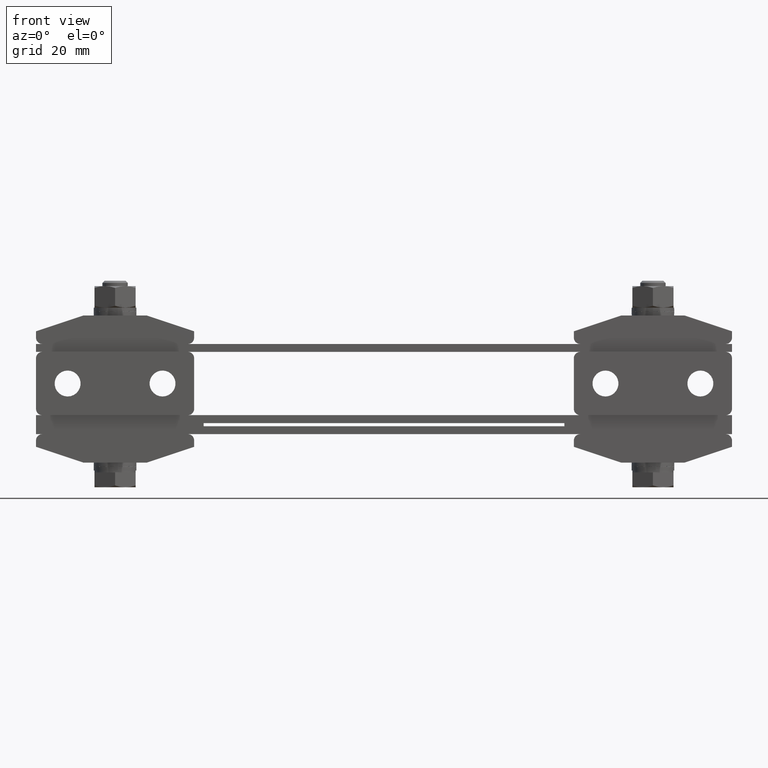
[diagram: clean part render]
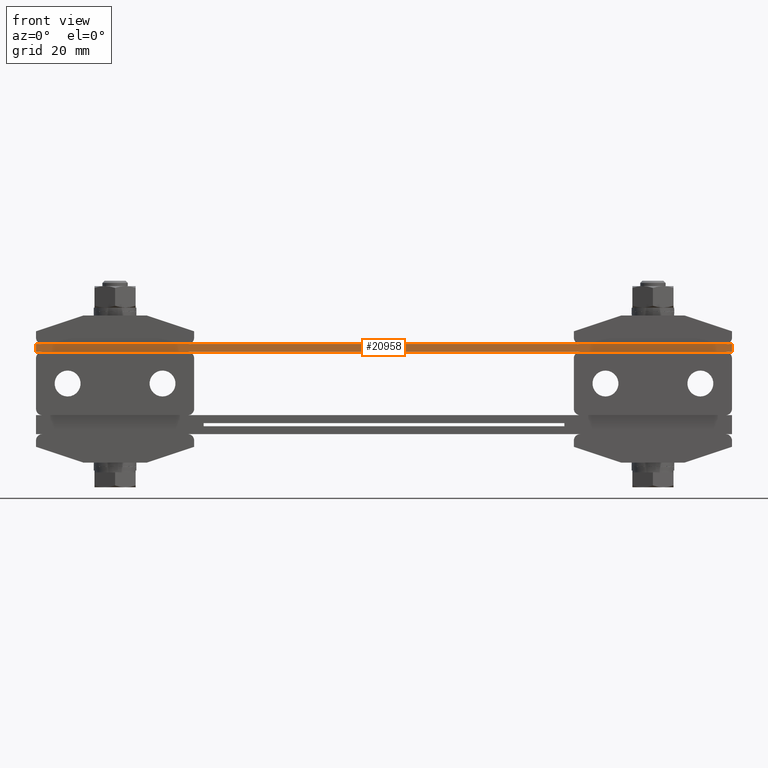
[diagram: same view with one face highlighted and labeled with its STEP entity id]
A machine part, front view. The second image highlights one B-rep face of the part: STEP entity #20958.
In plain terms, the highlighted planar face has unit normal (0, 1, 0).
Its self-contained STEP definition (entity closure, byte-faithful):
#562 = AXIS2_PLACEMENT_3D ( 'NONE', #18280, #9781, #21724 ) ;
#749 = EDGE_CURVE ( 'NONE', #12158, #14773, #8986, .T. ) ;
#4527 = CARTESIAN_POINT ( 'NONE',  ( -110.0000000000000000, -12.50000000000000000, 25.00000000000000000 ) ) ;
#4760 = PLANE ( 'NONE',  #562 ) ;
#5125 = CARTESIAN_POINT ( 'NONE',  ( 110.0000000000000000, -12.50000000000000000, 22.50000000000000000 ) ) ;
#7485 = FACE_OUTER_BOUND ( 'NONE', #8016, .T. ) ;
#7603 = VERTEX_POINT ( 'NONE', #21725 ) ;
#7869 = VECTOR ( 'NONE', #10921, 1000.000000000000000 ) ;
#8016 = EDGE_LOOP ( 'NONE', ( #11099, #11792, #10879, #16585 ) ) ;
#8036 = VECTOR ( 'NONE', #17623, 1000.000000000000000 ) ;
#8986 = LINE ( 'NONE', #11702, #11420 ) ;
#9781 = DIRECTION ( 'NONE',  ( 0.0000000000000000000, 1.000000000000000000, 0.0000000000000000000 ) ) ;
#10052 = DIRECTION ( 'NONE',  ( 1.000000000000000000, 0.0000000000000000000, 0.0000000000000000000 ) ) ;
#10803 = EDGE_CURVE ( 'NONE', #13783, #12158, #17010, .T. ) ;
#10879 = ORIENTED_EDGE ( 'NONE', *, *, #20645, .F. ) ;
#10921 = DIRECTION ( 'NONE',  ( 0.0000000000000000000, 0.0000000000000000000, -1.000000000000000000 ) ) ;
#11006 = CARTESIAN_POINT ( 'NONE',  ( -110.0000000000000000, -12.50000000000000000, 25.00000000000000000 ) ) ;
#11099 = ORIENTED_EDGE ( 'NONE', *, *, #749, .T. ) ;
#11420 = VECTOR ( 'NONE', #10052, 1000.000000000000000 ) ;
#11702 = CARTESIAN_POINT ( 'NONE',  ( -110.0000000000000000, -12.50000000000000000, 22.50000000000000000 ) ) ;
#11792 = ORIENTED_EDGE ( 'NONE', *, *, #14456, .F. ) ;
#12158 = VERTEX_POINT ( 'NONE', #20149 ) ;
#12810 = LINE ( 'NONE', #11006, #8036 ) ;
#13783 = VERTEX_POINT ( 'NONE', #15121 ) ;
#14176 = DIRECTION ( 'NONE',  ( 0.0000000000000000000, 0.0000000000000000000, -1.000000000000000000 ) ) ;
#14456 = EDGE_CURVE ( 'NONE', #7603, #14773, #17162, .T. ) ;
#14773 = VERTEX_POINT ( 'NONE', #5125 ) ;
#15121 = CARTESIAN_POINT ( 'NONE',  ( -110.0000000000000000, -12.50000000000000000, 25.00000000000000000 ) ) ;
#16585 = ORIENTED_EDGE ( 'NONE', *, *, #10803, .T. ) ;
#17010 = LINE ( 'NONE', #4527, #17280 ) ;
#17162 = LINE ( 'NONE', #17696, #7869 ) ;
#17280 = VECTOR ( 'NONE', #14176, 1000.000000000000000 ) ;
#17623 = DIRECTION ( 'NONE',  ( 1.000000000000000000, 0.0000000000000000000, 0.0000000000000000000 ) ) ;
#17696 = CARTESIAN_POINT ( 'NONE',  ( 110.0000000000000000, -12.50000000000000000, 25.00000000000000000 ) ) ;
#18280 = CARTESIAN_POINT ( 'NONE',  ( -110.0000000000000000, -12.50000000000000000, 25.00000000000000000 ) ) ;
#20149 = CARTESIAN_POINT ( 'NONE',  ( -110.0000000000000000, -12.50000000000000000, 22.50000000000000000 ) ) ;
#20645 = EDGE_CURVE ( 'NONE', #13783, #7603, #12810, .T. ) ;
#20958 = ADVANCED_FACE ( 'NONE', ( #7485 ), #4760, .F. ) ;
#21724 = DIRECTION ( 'NONE',  ( 0.0000000000000000000, 0.0000000000000000000, 1.000000000000000000 ) ) ;
#21725 = CARTESIAN_POINT ( 'NONE',  ( 110.0000000000000000, -12.50000000000000000, 25.00000000000000000 ) ) ;